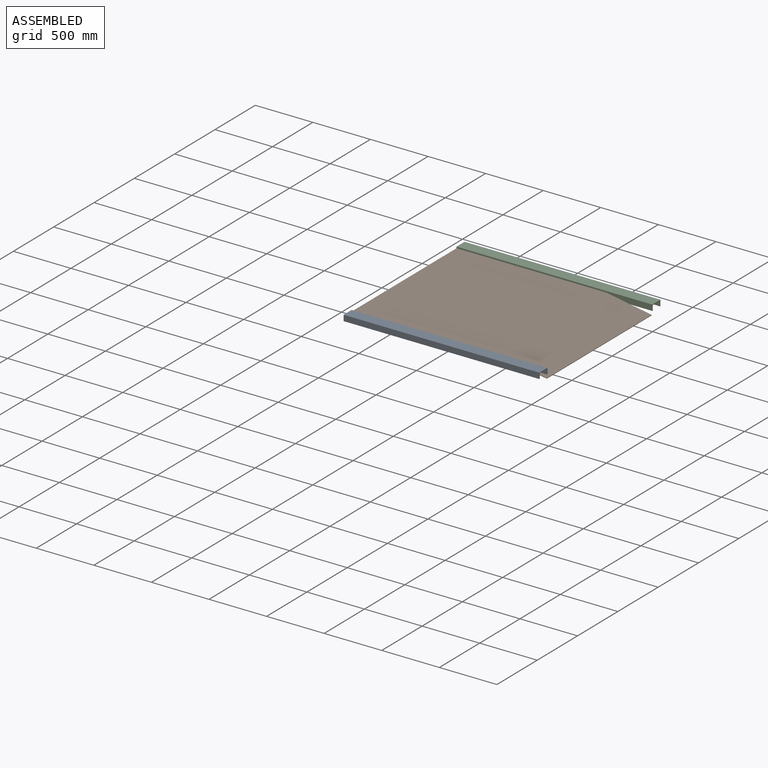
[diagram: assembled view]
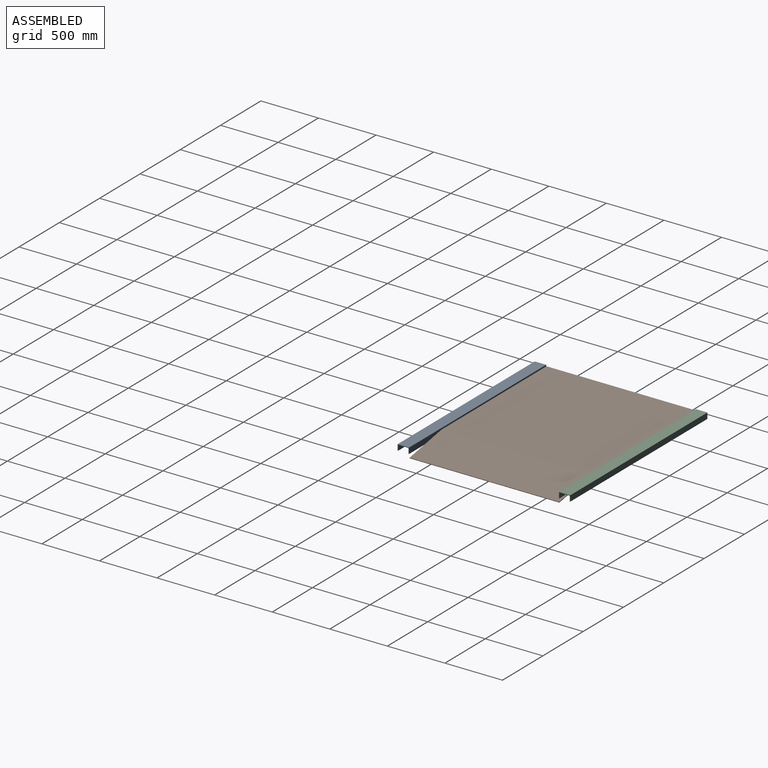
[diagram: assembled view, second angle]
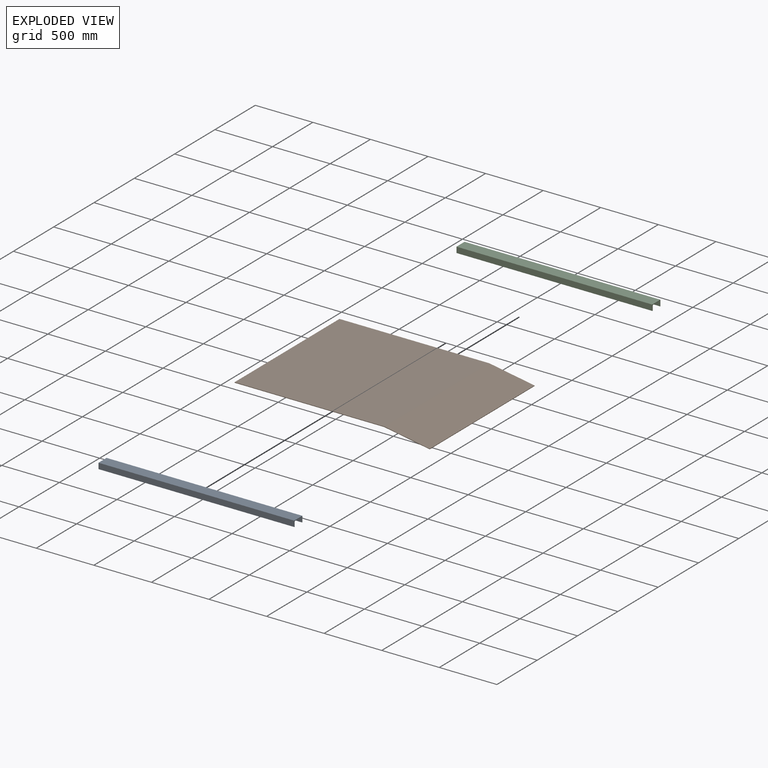
[diagram: exploded view]
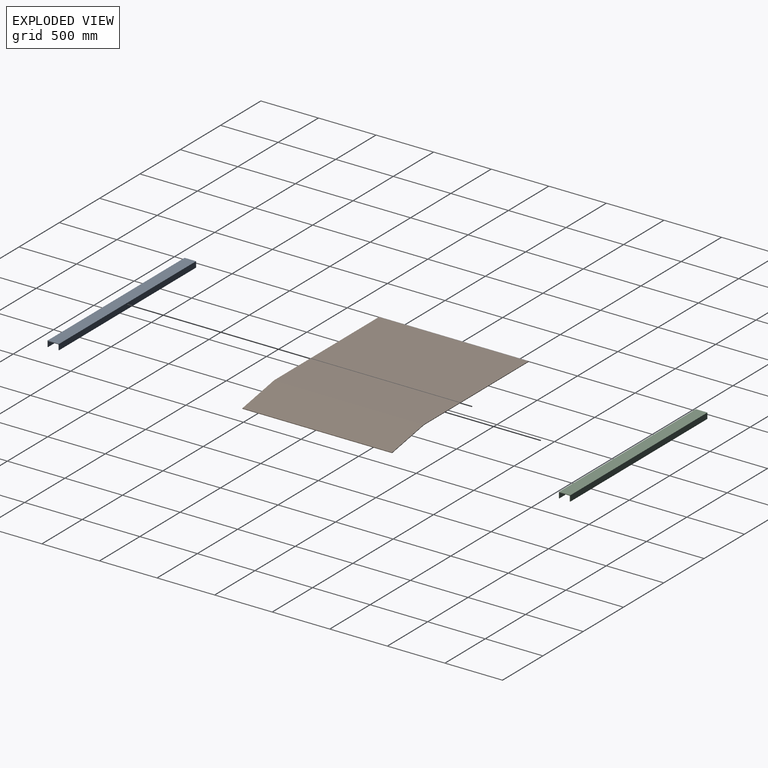
[diagram: exploded view, second angle]
ASSEMBLY  parts=3 mates=2
PART A: 12 faces, bbox 1700x100x50 mm
  f0: plane 1700x50mm, normal (0,-1,0), area 85000mm2, adj f1,f7,f8,f9
  f1: plane 1700x100mm, normal (0,0,-1), area 170000mm2, adj f0,f2,f8,f9
  f2: plane 1700x50mm, normal (0,1,0), area 85000mm2, adj f1,f3,f8,f9
  f3: plane 1700x5mm, normal (0,0,1), area 8500mm2, adj f2,f4,f8,f9
  f4: plane 1700x40mm, normal (0,-1,0), area 68000mm2, adj f3,f8,f9,f10
  f5: plane 1700x80mm, normal (0,0,1), area 136000mm2, adj f8,f9,f10,f11
  f6: plane 1700x40mm, normal (0,1,0), area 68000mm2, adj f7,f8,f9,f11
  f7: plane 1700x5mm, normal (0,0,1), area 8500mm2, adj f0,f6,f8,f9
  f8: plane 100x50mm, normal (1,0,0), area 960.7mm2, adj f0,f1,f2,f3,f4,f5,f6,f7
  f9: plane 100x50mm, normal (-1,0,0), area 960.7mm2, adj f0,f1,f2,f3,f4,f5,f6,f7
  f10: cylinder r=5mm len=1700mm, axis (1,0,0), area 13351.8mm2, adj f4,f5,f8,f9
  f11: cylinder r=5mm len=1700mm, axis (1,0,0), area 13351.8mm2, adj f5,f6,f8,f9
PART B: 8 faces, bbox 1694.8x1300x74.5 mm
  f0: plane 1300x5mm, normal (-1,0,0), area 6500mm2, adj f1,f5,f6,f7
  f1: plane 1300x1300mm, normal (0,0,-1), area 1690000mm2, adj f0,f2,f6,f7
  f2: plane 1300x393.92mm, normal (-0.17,0,-0.98), area 520000mm2, adj f1,f3,f6,f7
  f3: plane 1300x4.92mm, normal (0.98,0,-0.17), area 6500mm2, adj f2,f4,f6,f7
  f4: plane 1300x394.79mm, normal (0.17,0,0.98), area 521128.7mm2, adj f3,f5,f6,f7
  f5: plane 1300x1300mm, normal (0,0,1), area 1690000mm2, adj f0,f4,f6,f7
  f6: plane 1694.79x74.46mm, normal (0,-1,0), area 8487mm2, adj f0,f1,f2,f3,f4,f5
  f7: plane 1694.79x74.46mm, normal (0,1,0), area 8487mm2, adj f0,f1,f2,f3,f4,f5
PART C: same geometry as A
PLACE A rot(axis=(1,0,0),180deg) t=(-813.28,-690.58,9.32)mm
PLACE B t=(-163.28,659.42,19.32)mm
PLACE C rot(axis=(1,0,0),180deg) t=(-813.28,709.42,9.32)mm
MATE fastened C.f2 <-> B.f7  axis (0,-1,0) through (-813.28,659.42,9.32)mm
MATE fastened A.f0 <-> B.f6  axis (0,1,0) through (-813.28,-640.58,9.32)mm
